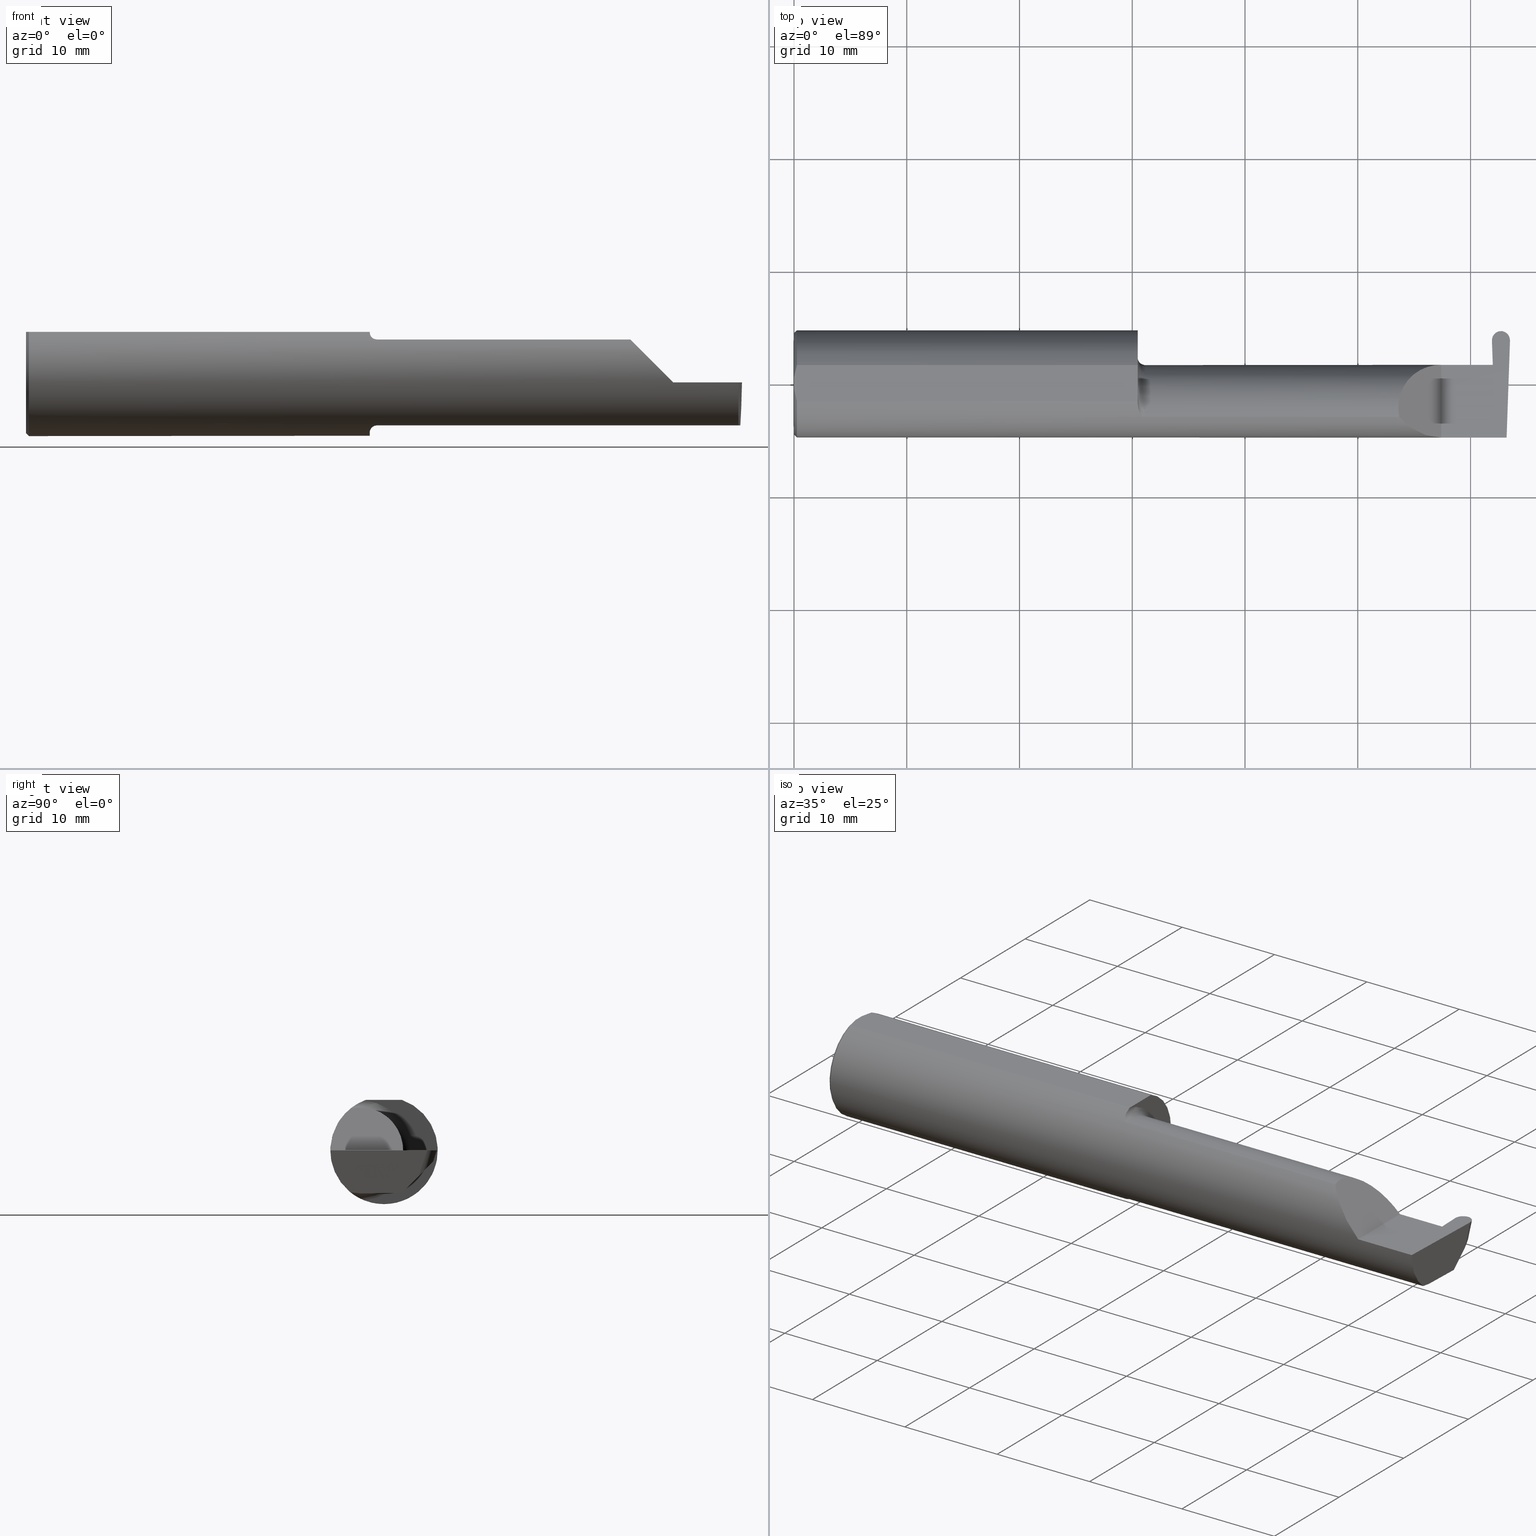
[diagram: canonical four-view strip — front | top / right | iso, engineering-drawing reading convention]
A machine part, canonical four-view strip (front | top / right | iso — engineering-drawing reading convention). The complete STEP part file that produces these views, byte-faithful:
ISO-10303-21;
HEADER;
FILE_DESCRIPTION (( 'STEP AP203' ),
    '1' );
FILE_NAME ('222149-GFR062-20.STEP',
    '2024-06-26T19:08:56',
    ( '' ),
    ( '' ),
    'SwSTEP 2.0',
    'SolidWorks 2024',
    '' );
FILE_SCHEMA (( 'CONFIG_CONTROL_DESIGN' ));
ENDSEC;

DATA;
#1 = ORIENTED_EDGE ( 'NONE', *, *, #168, .F. ) ;
#2 = ORIENTED_EDGE ( 'NONE', *, *, #165, .F. ) ;
#3 = DIRECTION ( 'NONE',  ( -1.000000000000000000, -0.000000000000000000, -0.000000000000000000 ) ) ;
#4 = AXIS2_PLACEMENT_3D ( 'NONE', #103, #274, #334 ) ;
#5 = VECTOR ( 'NONE', #602, 39.37007874015747433 ) ;
#6 = ADVANCED_FACE ( 'NONE', ( #112 ), #110, .T. ) ;
#7 = DIRECTION ( 'NONE',  ( -1.224646799147353947E-16, 0.000000000000000000, -1.000000000000000000 ) ) ;
#8 = CARTESIAN_POINT ( 'NONE',  ( 2.436235694025149279, 0.1704329581048291409, 7.809760431069554296E-18 ) ) ;
#9 = CARTESIAN_POINT ( 'NONE',  ( 0.000000000000000000, 0.000000000000000000, 0.000000000000000000 ) ) ;
#10 = DIRECTION ( 'NONE',  ( 0.000000000000000000, -0.7071067811865434649, -0.7071067811865515695 ) ) ;
#11 = CARTESIAN_POINT ( 'NONE',  ( -0.001039370078739994957, 0.06030305154315079158, -0.1500000000000000500 ) ) ;
#12 = VECTOR ( 'NONE', #221, 39.37007874015748143 ) ;
#13 = VECTOR ( 'NONE', #272, 39.37007874015748143 ) ;
#14 = CARTESIAN_POINT ( 'NONE',  ( 2.439475726232482877, 0.1218770478189729889, -0.08842600372417713794 ) ) ;
#15 = CARTESIAN_POINT ( 'NONE',  ( 1.222161949849308371, -0.1172600179964063821, 0.1461167706989258686 ) ) ;
#16 = ADVANCED_FACE ( 'NONE', ( #546 ), #108, .F. ) ;
#17 = EDGE_LOOP ( 'NONE', ( #694, #57, #437 ) ) ;
#18 = FACE_OUTER_BOUND ( 'NONE', #148, .T. ) ;
#19 = ORIENTED_EDGE ( 'NONE', *, *, #154, .F. ) ;
#20 = FACE_OUTER_BOUND ( 'NONE', #484, .T. ) ;
#21 = VECTOR ( 'NONE', #586, 39.37007874015748143 ) ;
#22 = AXIS2_PLACEMENT_3D ( 'NONE', #60, #55, #492 ) ;
#23 = CARTESIAN_POINT ( 'NONE',  ( -0.001039370078739994957, 0.1846500000000000363, 0.000000000000000000 ) ) ;
#24 = EDGE_CURVE ( 'NONE', #432, #397, #139, .T. ) ;
#25 = CARTESIAN_POINT ( 'NONE',  ( 1.200353553376445115, -0.07868116735658681193, 0.1701139256562800572 ) ) ;
#26 = VERTEX_POINT ( 'NONE', #267 ) ;
#27 = CARTESIAN_POINT ( 'NONE',  ( 2.442590694315768474, 0.002105059811798063937, -0.1499999999999999667 ) ) ;
#28 = DIRECTION ( 'NONE',  ( -0.02739170151059995562, 0.3089010440752013587, 0.9506996579664918068 ) ) ;
#29 = PERSON_AND_ORGANIZATION ( #97, #609 ) ;
#30 = ORIENTED_EDGE ( 'NONE', *, *, #579, .T. ) ;
#31 = CARTESIAN_POINT ( 'NONE',  ( 1.219511795768554840, -0.1163687266324236191, -0.1468371510166787963 ) ) ;
#32 = DIRECTION ( 'NONE',  ( -1.000000000000000000, -6.902170632284375996E-17, -0.000000000000000000 ) ) ;
#33 = ORIENTED_EDGE ( 'NONE', *, *, #117, .T. ) ;
#34 = EDGE_CURVE ( 'NONE', #420, #628, #554, .T. ) ;
#35 = LINE ( 'NONE', #126, #350 ) ;
#36 = VECTOR ( 'NONE', #186, 39.37007874015747433 ) ;
#37 = PLANE ( 'NONE',  #84 ) ;
#38 = CONICAL_SURFACE ( 'NONE', #327, 0.1773499999999999521, 0.7853981633974431720 ) ;
#39 = ORIENTED_EDGE ( 'NONE', *, *, #34, .F. ) ;
#40 = DIRECTION ( 'NONE',  ( 0.000000000000000000, 0.000000000000000000, -1.000000000000000000 ) ) ;
#41 = EDGE_CURVE ( 'NONE', #201, #161, #643, .T. ) ;
#42 = EDGE_LOOP ( 'NONE', ( #50, #292, #561, #523 ) ) ;
#43 = DIRECTION ( 'NONE',  ( -0.01806954526206907760, 0.01744955702544846027, 0.9996844524616944616 ) ) ;
#44 = PERSON_AND_ORGANIZATION ( #97, #609 ) ;
#45 = ORIENTED_EDGE ( 'NONE', *, *, #708, .T. ) ;
#46 = DIRECTION ( 'NONE',  ( -6.902170632284375996E-17, 1.000000000000000000, 0.000000000000000000 ) ) ;
#47 = VERTEX_POINT ( 'NONE', #277 ) ;
#48 = EDGE_CURVE ( 'NONE', #344, #690, #270, .T. ) ;
#49 = CARTESIAN_POINT ( 'NONE',  ( 2.488744025780162961, -0.09477667630339420279, -0.1499999999999999667 ) ) ;
#50 = ORIENTED_EDGE ( 'NONE', *, *, #606, .T. ) ;
#51 = ORIENTED_EDGE ( 'NONE', *, *, #658, .T. ) ;
#52 = DIRECTION ( 'NONE',  ( 0.000000000000000000, -1.000000000000000000, 0.000000000000000000 ) ) ;
#53 = EDGE_CURVE ( 'NONE', #297, #528, #349, .T. ) ;
#54 = CARTESIAN_POINT ( 'NONE',  ( 2.155331797197863608, 0.06664999999999991764, 0.1046682028021361927 ) ) ;
#55 = DIRECTION ( 'NONE',  ( 1.000000000000000000, 6.902170632284375996E-17, 0.000000000000000000 ) ) ;
#56 = SECURITY_CLASSIFICATION ( '', '', #364 ) ;
#57 = ORIENTED_EDGE ( 'NONE', *, *, #217, .T. ) ;
#58 = CARTESIAN_POINT ( 'NONE',  ( 2.468430450000000054, 0.1813675557112593428, -0.01010232474915217019 ) ) ;
#59 = ORIENTED_EDGE ( 'NONE', *, *, #671, .F. ) ;
#60 = CARTESIAN_POINT ( 'NONE',  ( 1.199999999999999956, 0.000000000000000000, 0.000000000000000000 ) ) ;
#61 = VERTEX_POINT ( 'NONE', #660 ) ;
#62 = CARTESIAN_POINT ( 'NONE',  ( 1.225000000000000089, -0.1172600179964007477, 0.1461167706989301984 ) ) ;
#63 = CIRCLE ( 'NONE', #600, 0.1773499999999999521 ) ;
#64 = CARTESIAN_POINT ( 'NONE',  ( 0.01000000000000013205, 0.000000000000000000, 0.000000000000000000 ) ) ;
#65 = CARTESIAN_POINT ( 'NONE',  ( 2.442572338171930646, 0.06030305154315081240, -0.1500000000000000500 ) ) ;
#66 = DIRECTION ( 'NONE',  ( 1.000000000000000000, 0.000000000000000000, 0.000000000000000000 ) ) ;
#67 = LINE ( 'NONE', #278, #237 ) ;
#68 = DIRECTION ( 'NONE',  ( 6.902170632284375996E-17, -1.000000000000000000, 0.000000000000000000 ) ) ;
#69 = EDGE_LOOP ( 'NONE', ( #150, #433, #33, #222, #281, #426 ) ) ;
#70 = CARTESIAN_POINT ( 'NONE',  ( 2.876828993045917215, 0.1873499999999998500, 0.1763499999999999235 ) ) ;
#71 = CIRCLE ( 'NONE', #704, 0.1873499999999999888 ) ;
#72 = DIRECTION ( 'NONE',  ( 0.9992386149554828290, 0.03489418134010615485, 0.01745240643728358798 ) ) ;
#73 = VERTEX_POINT ( 'NONE', #592 ) ;
#74 = LINE ( 'NONE', #399, #316 ) ;
#75 = DIRECTION ( 'NONE',  ( -0.03701744261649762141, 0.7066221440565398915, 0.7066221440565479961 ) ) ;
#76 = DATE_TIME_ROLE ( 'creation_date' ) ;
#77 = ORIENTED_EDGE ( 'NONE', *, *, #598, .F. ) ;
#78 = ADVANCED_FACE ( 'NONE', ( #101 ), #329, .F. ) ;
#79 = DIRECTION ( 'NONE',  ( 1.000000000000000000, 0.000000000000000000, -0.000000000000000000 ) ) ;
#80 = DIRECTION ( 'NONE',  ( -0.03489949670249345437, 0.9993908270190959842, 0.000000000000000000 ) ) ;
#81 = VERTEX_POINT ( 'NONE', #263 ) ;
#82 = FACE_OUTER_BOUND ( 'NONE', #69, .T. ) ;
#83 = ADVANCED_FACE ( 'NONE', ( #213 ), #487, .F. ) ;
#84 = AXIS2_PLACEMENT_3D ( 'NONE', #131, #181, #617 ) ;
#85 = CARTESIAN_POINT ( 'NONE',  ( 0.000000000000000000, 0.01880691362238934988, 0.1763499999999999235 ) ) ;
#86 = ORIENTED_EDGE ( 'NONE', *, *, #476, .F. ) ;
#87 = CARTESIAN_POINT ( 'NONE',  ( 2.488026713523222799, -0.1172600179964006922, -0.1461167706989302817 ) ) ;
#88 = CARTESIAN_POINT ( 'NONE',  ( 2.468721519699850209, 0.1846500000000000363, 0.000000000000000000 ) ) ;
#89 = PERSON_AND_ORGANIZATION ( #97, #609 ) ;
#90 = VERTEX_POINT ( 'NONE', #173 ) ;
#91 = CARTESIAN_POINT ( 'NONE',  ( 2.430739223982273156, 0.06664999999999991764, 0.000000000000000000 ) ) ;
#92 = ORIENTED_EDGE ( 'NONE', *, *, #48, .T. ) ;
#93 = ADVANCED_FACE ( 'NONE', ( #517 ), #128, .F. ) ;
#94 = LINE ( 'NONE', #306, #106 ) ;
#95 = ORIENTED_EDGE ( 'NONE', *, *, #41, .F. ) ;
#96 = CIRCLE ( 'NONE', #564, 0.1773499999999999521 ) ;
#97 = PERSON ( 'UNSPECIFIED', 'UNSPECIFIED', 'UNSPECIFIED', ('UNSPECIFIED'), ('UNSPECIFIED'), ('UNSPECIFIED') ) ;
#98 = ORIENTED_EDGE ( 'NONE', *, *, #634, .T. ) ;
#99 = LINE ( 'NONE', #384, #151 ) ;
#100 = EDGE_CURVE ( 'NONE', #124, #320, #559, .T. ) ;
#101 = FACE_OUTER_BOUND ( 'NONE', #416, .T. ) ;
#102 = DIRECTION ( 'NONE',  ( 0.000000000000000000, 0.000000000000000000, -1.000000000000000000 ) ) ;
#103 = CARTESIAN_POINT ( 'NONE',  ( 2.260000000000000231, -0.2500000000000000555, 2.939152317953647352E-17 ) ) ;
#104 = CARTESIAN_POINT ( 'NONE',  ( 2.468392368909974710, 0.1518387226096841736, 0.0009534130333776854498 ) ) ;
#105 = ORIENTED_EDGE ( 'NONE', *, *, #154, .T. ) ;
#106 = VECTOR ( 'NONE', #707, 39.37007874015748143 ) ;
#107 = VECTOR ( 'NONE', #156, 39.37007874015747433 ) ;
#108 = PLANE ( 'NONE',  #4 ) ;
#109 = DIRECTION ( 'NONE',  ( -1.000000000000000000, -0.000000000000000000, -0.000000000000000000 ) ) ;
#110 = CYLINDRICAL_SURFACE ( 'NONE', #372, 0.03150000000000000716 ) ;
#111 = PLANE ( 'NONE',  #653 ) ;
#112 = FACE_OUTER_BOUND ( 'NONE', #146, .T. ) ;
#113 = APPLICATION_PROTOCOL_DEFINITION ( 'international standard', 'config_control_design', 1994, #696 ) ;
#114 = AXIS2_PLACEMENT_3D ( 'NONE', #179, #515, #461 ) ;
#115 = CARTESIAN_POINT ( 'NONE',  ( 2.499932917084233264, 0.1506083980881225415, 0.000000000000000000 ) ) ;
#116 = CARTESIAN_POINT ( 'NONE',  ( 2.436927982915767288, 0.1506083980881225137, 0.000000000000000000 ) ) ;
#117 = EDGE_CURVE ( 'NONE', #90, #184, #67, .T. ) ;
#118 = CARTESIAN_POINT ( 'NONE',  ( 1.202960551809340251, -0.09317341542745753713, -0.1626248379125196653 ) ) ;
#119 = PLANE ( 'NONE',  #621 ) ;
#120 = DIRECTION ( 'NONE',  ( 1.000000000000000000, 0.000000000000000000, 0.000000000000000000 ) ) ;
#121 = ORIENTED_EDGE ( 'NONE', *, *, #612, .F. ) ;
#122 = DIRECTION ( 'NONE',  ( 0.000000000000000000, 0.000000000000000000, 1.000000000000000000 ) ) ;
#123 = DIRECTION ( 'NONE',  ( -0.03489949670249308661, -0.9993908270190960952, 0.000000000000000000 ) ) ;
#124 = VERTEX_POINT ( 'NONE', #573 ) ;
#125 = AXIS2_PLACEMENT_3D ( 'NONE', #321, #541, #10 ) ;
#126 = CARTESIAN_POINT ( 'NONE',  ( -0.001039370078739994957, 0.1846500000000000363, 0.000000000000000000 ) ) ;
#127 = AXIS2_PLACEMENT_3D ( 'NONE', #485, #641, #596 ) ;
#128 = PLANE ( 'NONE',  #543 ) ;
#129 = VERTEX_POINT ( 'NONE', #177 ) ;
#130 = CARTESIAN_POINT ( 'NONE',  ( 1.199999999999999956, -0.06851976604679066440, -0.1743704796142198643 ) ) ;
#131 = CARTESIAN_POINT ( 'NONE',  ( 0.000000000000000000, 0.000000000000000000, 0.000000000000000000 ) ) ;
#132 = CALENDAR_DATE ( 2024, 26, 6 ) ;
#133 = ORIENTED_EDGE ( 'NONE', *, *, #683, .F. ) ;
#134 = ADVANCED_FACE ( 'NONE', ( #626 ), #119, .F. ) ;
#135 = PLANE ( 'NONE',  #215 ) ;
#136 = ORIENTED_EDGE ( 'NONE', *, *, #398, .F. ) ;
#137 = CARTESIAN_POINT ( 'NONE',  ( 2.488026713523222799, -0.1172600179964006922, -0.1461167706989302817 ) ) ;
#138 = APPROVAL ( #419, 'UNSPECIFIED' ) ;
#139 = CIRCLE ( 'NONE', #524, 0.1749999999999999889 ) ;
#140 = CARTESIAN_POINT ( 'NONE',  ( 1.199999999999999956, 0.1873499999999998222, 0.000000000000000000 ) ) ;
#141 = AXIS2_PLACEMENT_3D ( 'NONE', #205, #328, #52 ) ;
#142 = ORIENTED_EDGE ( 'NONE', *, *, #489, .T. ) ;
#143 = LINE ( 'NONE', #542, #107 ) ;
#144 = LINE ( 'NONE', #581, #21 ) ;
#145 = DATE_TIME_ROLE ( 'classification_date' ) ;
#146 = EDGE_LOOP ( 'NONE', ( #155, #638, #121, #39, #257 ) ) ;
#147 = LINE ( 'NONE', #481, #324 ) ;
#148 = EDGE_LOOP ( 'NONE', ( #538, #686, #570, #30, #51 ) ) ;
#149 = VECTOR ( 'NONE', #75, 39.37007874015748143 ) ;
#150 = ORIENTED_EDGE ( 'NONE', *, *, #571, .T. ) ;
#151 = VECTOR ( 'NONE', #635, 39.37007874015748143 ) ;
#152 = ORIENTED_EDGE ( 'NONE', *, *, #429, .F. ) ;
#153 = CARTESIAN_POINT ( 'NONE',  ( 2.468430450000000054, 0.1783435689548762415, -0.01940919900590836258 ) ) ;
#154 = EDGE_CURVE ( 'NONE', #459, #26, #522, .T. ) ;
#155 = ORIENTED_EDGE ( 'NONE', *, *, #550, .F. ) ;
#156 = DIRECTION ( 'NONE',  ( -0.01806954526206907760, 0.01744955702544846027, 0.9996844524616944616 ) ) ;
#157 = PRODUCT_DEFINITION_SHAPE ( 'NONE', 'NONE',  #377 ) ;
#158 = CARTESIAN_POINT ( 'NONE',  ( 2.466868444985754305, 0.1637525499561582054, -0.06431573796887413152 ) ) ;
#159 = LINE ( 'NONE', #376, #477 ) ;
#160 = AXIS2_PLACEMENT_3D ( 'NONE', #436, #604, #68 ) ;
#161 = VERTEX_POINT ( 'NONE', #501 ) ;
#162 = COORDINATED_UNIVERSAL_TIME_OFFSET ( 8, 0, .BEHIND. ) ;
#163 = CARTESIAN_POINT ( 'NONE',  ( 2.436927982915767288, 0.1506083980881225137, 0.000000000000000000 ) ) ;
#164 = CARTESIAN_POINT ( 'NONE',  ( 2.260000000000000231, 0.06664999999999993152, 1.592040838891559588E-16 ) ) ;
#165 = EDGE_CURVE ( 'NONE', #532, #201, #568, .T. ) ;
#166 = CARTESIAN_POINT ( 'NONE',  ( 2.439859874782298377, 0.06664999999999998703, 0.000000000000000000 ) ) ;
#167 = ORIENTED_EDGE ( 'NONE', *, *, #326, .T. ) ;
#168 = EDGE_CURVE ( 'NONE', #61, #129, #342, .T. ) ;
#169 = AXIS2_PLACEMENT_3D ( 'NONE', #669, #607, #120 ) ;
#170 = CARTESIAN_POINT ( 'NONE',  ( 0.000000000000000000, 0.000000000000000000, 0.000000000000000000 ) ) ;
#171 = ORIENTED_EDGE ( 'NONE', *, *, #245, .F. ) ;
#172 = DIRECTION ( 'NONE',  ( 1.000000000000000000, 6.902170632284375996E-17, 0.000000000000000000 ) ) ;
#173 = CARTESIAN_POINT ( 'NONE',  ( 1.199999999999999956, 0.06325108694718235836, 0.1763499999999999235 ) ) ;
#174 =( NAMED_UNIT ( * ) PLANE_ANGLE_UNIT ( ) SI_UNIT ( $, .RADIAN. ) );
#175 = VERTEX_POINT ( 'NONE', #506 ) ;
#176 = CARTESIAN_POINT ( 'NONE',  ( 2.439954497345508511, 0.06655862405284596051, -0.005234924505382013322 ) ) ;
#177 = CARTESIAN_POINT ( 'NONE',  ( 2.488131149766799943, -0.1873499999999999888, 0.000000000000000000 ) ) ;
#178 = ORIENTED_EDGE ( 'NONE', *, *, #338, .T. ) ;
#179 = CARTESIAN_POINT ( 'NONE',  ( 2.499980768683121024, 0.1519786885938757826, 0.000000000000000000 ) ) ;
#180 = APPROVAL_PERSON_ORGANIZATION ( #44, #138, #235 ) ;
#181 = DIRECTION ( 'NONE',  ( 1.000000000000000000, 0.000000000000000000, 0.000000000000000000 ) ) ;
#182 = PERSON_AND_ORGANIZATION_ROLE ( 'creator' ) ;
#183 = ADVANCED_FACE ( 'NONE', ( #679 ), #37, .F. ) ;
#184 = VERTEX_POINT ( 'NONE', #556 ) ;
#185 = CARTESIAN_POINT ( 'NONE',  ( 0.000000000000000000, 0.000000000000000000, 0.000000000000000000 ) ) ;
#186 = DIRECTION ( 'NONE',  ( 0.02739170151059995562, -0.3089010440752013031, -0.9506996579664920288 ) ) ;
#187 = EDGE_LOOP ( 'NONE', ( #203, #370, #615, #676, #595, #645, #77, #86, #430, #259 ) ) ;
#188 = CARTESIAN_POINT ( 'NONE',  ( 0.01000000000000013205, 0.000000000000000000, 0.000000000000000000 ) ) ;
#189 = CARTESIAN_POINT ( 'NONE',  ( 2.498892892970808521, 0.1506577441815562524, -0.05964530736159356916 ) ) ;
#190 = DATE_AND_TIME ( #275, #395 ) ;
#191 = ORIENTED_EDGE ( 'NONE', *, *, #480, .T. ) ;
#192 = EDGE_CURVE ( 'NONE', #597, #297, #688, .T. ) ;
#193 = CARTESIAN_POINT ( 'NONE',  ( 2.468430450000000054, 0.1722870660481372052, -0.03801598549501235269 ) ) ;
#194 = VECTOR ( 'NONE', #584, 39.37007874015748143 ) ;
#195 = CARTESIAN_POINT ( 'NONE',  ( 2.488370294460939380, -0.1061291577212409576, -0.1486999626928445506 ) ) ;
#196 = ORIENTED_EDGE ( 'NONE', *, *, #429, .T. ) ;
#197 = CARTESIAN_POINT ( 'NONE',  ( 2.430647848035137226, 0.06655862405286423755, -0.005234924505377647891 ) ) ;
#198 = ORIENTED_EDGE ( 'NONE', *, *, #362, .F. ) ;
#199 = EDGE_CURVE ( 'NONE', #583, #26, #552, .T. ) ;
#200 = CARTESIAN_POINT ( 'NONE',  ( 2.488026713523222799, -0.1172600179964006922, -0.1461167706989302817 ) ) ;
#201 = VERTEX_POINT ( 'NONE', #346 ) ;
#202 = DESIGN_CONTEXT ( 'detailed design', #483, 'design' ) ;
#203 = ORIENTED_EDGE ( 'NONE', *, *, #245, .T. ) ;
#204 = CIRCLE ( 'NONE', #252, 0.1499999999999999112 ) ;
#205 = CARTESIAN_POINT ( 'NONE',  ( 1.199999999999999956, -0.08335000000000007681, 0.000000000000000000 ) ) ;
#206 = ADVANCED_FACE ( 'NONE', ( #18 ), #230, .F. ) ;
#207 = DIRECTION ( 'NONE',  ( -0.02739170151059983765, -0.3089010440752013031, -0.9506996579664919178 ) ) ;
#208 = FACE_OUTER_BOUND ( 'NONE', #236, .T. ) ;
#209 = CC_DESIGN_PERSON_AND_ORGANIZATION_ASSIGNMENT ( #219, #291, ( #490 ) ) ;
#210 = ORIENTED_EDGE ( 'NONE', *, *, #476, .T. ) ;
#211 = CARTESIAN_POINT ( 'NONE',  ( 1.199999999999999956, -0.06325108694718287183, 0.1763499999999999235 ) ) ;
#212 =( BOUNDED_CURVE ( )  B_SPLINE_CURVE ( 3, ( #536, #256, #189, #631 ),
 .UNSPECIFIED., .F., .F. ) 
 B_SPLINE_CURVE_WITH_KNOTS ( ( 4, 4 ),
 ( 3.153164711223715777, 4.726229945297543367 ),
 .UNSPECIFIED. ) 
 CURVE ( )  GEOMETRIC_REPRESENTATION_ITEM ( )  RATIONAL_B_SPLINE_CURVE ( ( 1.000000000000000000, 0.8042027643195482911, 0.8042027643195482911, 1.000000000000000000 ) ) 
 REPRESENTATION_ITEM ( '' )  );
#213 = FACE_OUTER_BOUND ( 'NONE', #242, .T. ) ;
#214 = CARTESIAN_POINT ( 'NONE',  ( 2.488131149766799943, -0.1873499999999999888, 0.000000000000000000 ) ) ;
#215 = AXIS2_PLACEMENT_3D ( 'NONE', #70, #575, #79 ) ;
#216 = ORIENTED_EDGE ( 'NONE', *, *, #269, .F. ) ;
#217 = EDGE_CURVE ( 'NONE', #628, #344, #290, .T. ) ;
#218 = ORIENTED_EDGE ( 'NONE', *, *, #571, .F. ) ;
#219 = PERSON_AND_ORGANIZATION ( #97, #609 ) ;
#220 = VERTEX_POINT ( 'NONE', #622 ) ;
#221 = DIRECTION ( 'NONE',  ( 0.7071067811865511255, 0.000000000000000000, -0.7071067811865439090 ) ) ;
#222 = ORIENTED_EDGE ( 'NONE', *, *, #347, .F. ) ;
#223 = VECTOR ( 'NONE', #123, 39.37007874015747433 ) ;
#224 = LOCAL_TIME ( 12, 8, 56.00000000000000000, #632 ) ;
#225 = CARTESIAN_POINT ( 'NONE',  ( 0.005151108632379722968, -0.04888864921576022843, 0.1763499999999999235 ) ) ;
#226 = CARTESIAN_POINT ( 'NONE',  ( 2.433493489500018203, 0.2360713477856620224, 0.02576829624251320353 ) ) ;
#227 = DIRECTION ( 'NONE',  ( 0.000000000000000000, 0.000000000000000000, -1.000000000000000000 ) ) ;
#228 = ORIENTED_EDGE ( 'NONE', *, *, #480, .F. ) ;
#229 = CARTESIAN_POINT ( 'NONE',  ( 1.213203859946833996, -0.1120371980050639676, -0.1501764597936558199 ) ) ;
#230 = PLANE ( 'NONE',  #672 ) ;
#231 = ORIENTED_EDGE ( 'NONE', *, *, #117, .F. ) ;
#232 = CARTESIAN_POINT ( 'NONE',  ( 1.206304331342287650, -0.1022198306720692035, -0.1570962426853817762 ) ) ;
#233 = EDGE_CURVE ( 'NONE', #47, #201, #427, .T. ) ;
#234 = DIRECTION ( 'NONE',  ( 0.000000000000000000, 0.000000000000000000, 1.000000000000000000 ) ) ;
#235 = APPROVAL_ROLE ( '' ) ;
#236 = EDGE_LOOP ( 'NONE', ( #650, #413, #178, #566 ) ) ;
#237 = VECTOR ( 'NONE', #283, 39.37007874015748143 ) ;
#238 = FACE_OUTER_BOUND ( 'NONE', #509, .T. ) ;
#239 = CARTESIAN_POINT ( 'NONE',  ( 2.202189699843948745, -0.1873500000000000443, 0.05781030015605096578 ) ) ;
#240 = CC_DESIGN_DATE_AND_TIME_ASSIGNMENT ( #689, #76, ( #377 ) ) ;
#241 = CALENDAR_DATE ( 2024, 26, 6 ) ;
#242 = EDGE_LOOP ( 'NONE', ( #247, #92, #216, #59, #254, #152, #251, #1, #601 ) ) ;
#243 =( BOUNDED_CURVE ( )  B_SPLINE_CURVE ( 3, ( #511, #27, #417, #469 ),
 .UNSPECIFIED., .F., .T. ) 
 B_SPLINE_CURVE_WITH_KNOTS ( ( 4, 4 ),
 ( 3.159045946109732661, 4.694935687864692397 ),
 .UNSPECIFIED. ) 
 CURVE ( )  GEOMETRIC_REPRESENTATION_ITEM ( )  RATIONAL_B_SPLINE_CURVE ( ( 1.000000000000000000, 0.8128932002257790446, 0.8128932002257790446, 1.000000000000000000 ) ) 
 REPRESENTATION_ITEM ( '' )  );
#244 = CARTESIAN_POINT ( 'NONE',  ( 1.222174967710399462, -0.1172600179964008033, -0.1461167706989301707 ) ) ;
#245 = EDGE_CURVE ( 'NONE', #587, #394, #693, .T. ) ;
#246 = DIRECTION ( 'NONE',  ( 1.000000000000000000, 6.902170632284375996E-17, 0.000000000000000000 ) ) ;
#247 = ORIENTED_EDGE ( 'NONE', *, *, #390, .F. ) ;
#248 = DIRECTION ( 'NONE',  ( 1.000000000000000000, 0.000000000000000000, 0.000000000000000000 ) ) ;
#249 = CARTESIAN_POINT ( 'NONE',  ( 1.199999999999999956, 0.1873499999999997390, 0.1763499999999999235 ) ) ;
#250 = APPROVAL_ROLE ( '' ) ;
#251 = ORIENTED_EDGE ( 'NONE', *, *, #489, .F. ) ;
#252 = AXIS2_PLACEMENT_3D ( 'NONE', #614, #343, #445 ) ;
#253 = DIRECTION ( 'NONE',  ( 1.000000000000000000, 0.000000000000000000, 0.000000000000000000 ) ) ;
#254 = ORIENTED_EDGE ( 'NONE', *, *, #380, .F. ) ;
#255 = B_SPLINE_CURVE_WITH_KNOTS ( 'NONE', 3,
 ( #85, #363, #474, #310 ),
 .UNSPECIFIED., .F., .F.,
 ( 4, 4 ),
 ( 0.01188664626022242071, 0.01304646959483746725 ),
 .UNSPECIFIED. ) ;
#256 = CARTESIAN_POINT ( 'NONE',  ( 2.486891473655445939, 0.1715521506114310035, -0.03875090093171857514 ) ) ;
#257 = ORIENTED_EDGE ( 'NONE', *, *, #258, .F. ) ;
#258 = EDGE_CURVE ( 'NONE', #61, #420, #495, .T. ) ;
#259 = ORIENTED_EDGE ( 'NONE', *, *, #323, .F. ) ;
#260 = CARTESIAN_POINT ( 'NONE',  ( 2.499944547461123268, 0.1507395558974708449, 0.0004036622306032633173 ) ) ;
#261 = CLOSED_SHELL ( 'NONE', ( #500, #665, #410, #16, #83, #460, #183, #357, #659, #521, #266, #93, #134, #78, #206, #383, #555, #6, #540 ) ) ;
#262 = APPROVAL ( #442, 'UNSPECIFIED' ) ;
#263 = CARTESIAN_POINT ( 'NONE',  ( 2.430647848035137226, 0.06655862405286423755, -0.005234924505377647891 ) ) ;
#264 = VECTOR ( 'NONE', #572, 39.37007874015748143 ) ;
#265 = CARTESIAN_POINT ( 'NONE',  ( 2.487084196965268390, -0.1623470442677541203, -0.1099340280425337990 ) ) ;
#266 = ADVANCED_FACE ( 'NONE', ( #610 ), #478, .T. ) ;
#267 = CARTESIAN_POINT ( 'NONE',  ( 0.01000000000000013205, 0.000000000000000000, -0.1873499999999999888 ) ) ;
#268 = CARTESIAN_POINT ( 'NONE',  ( 1.225000000000000089, -0.1172600179964007477, 0.1461167706989301984 ) ) ;
#269 = EDGE_CURVE ( 'NONE', #175, #690, #147, .T. ) ;
#270 =( BOUNDED_CURVE ( )  B_SPLINE_CURVE ( 3, ( #499, #497, #8, #163 ),
 .UNSPECIFIED., .F., .T. ) 
 B_SPLINE_CURVE_WITH_KNOTS ( ( 4, 4 ),
 ( 3.057488531086369754, 4.656081685705084183 ),
 .UNSPECIFIED. ) 
 CURVE ( )  GEOMETRIC_REPRESENTATION_ITEM ( )  RATIONAL_B_SPLINE_CURVE ( ( 1.000000000000000000, 0.7981407609938104830, 0.7981407609938104830, 1.000000000000000000 ) ) 
 REPRESENTATION_ITEM ( '' )  );
#271 = ORIENTED_EDGE ( 'NONE', *, *, #233, .F. ) ;
#272 = DIRECTION ( 'NONE',  ( 1.000000000000000000, -0.000000000000000000, -0.000000000000000000 ) ) ;
#273 = MANIFOLD_SOLID_BREP ( 'Radii', #261 ) ;
#274 = DIRECTION ( 'NONE',  ( -0.7071067811865441310, 0.000000000000000000, -0.7071067811865510144 ) ) ;
#275 = CALENDAR_DATE ( 2024, 26, 6 ) ;
#276 = LOCAL_TIME ( 12, 8, 56.00000000000000000, #531 ) ;
#277 = CARTESIAN_POINT ( 'NONE',  ( 2.260000000000000231, -0.1873499999999999888, 2.939152317953647352E-17 ) ) ;
#278 = CARTESIAN_POINT ( 'NONE',  ( 0.000000000000000000, 0.06325108694718235836, 0.1763499999999999235 ) ) ;
#279 = EDGE_CURVE ( 'NONE', #690, #297, #415, .T. ) ;
#280 = CARTESIAN_POINT ( 'NONE',  ( 1.208475602106621416, -0.1064978748893407601, 0.1542035505680382779 ) ) ;
#281 = ORIENTED_EDGE ( 'NONE', *, *, #100, .F. ) ;
#282 = CARTESIAN_POINT ( 'NONE',  ( 0.000000000000000000, 0.000000000000000000, -0.1773499999999999521 ) ) ;
#283 = DIRECTION ( 'NONE',  ( -1.000000000000000000, -0.000000000000000000, -0.000000000000000000 ) ) ;
#284 = CC_DESIGN_DATE_AND_TIME_ASSIGNMENT ( #644, #145, ( #56 ) ) ;
#285 = DIRECTION ( 'NONE',  ( 1.000000000000000000, 7.488084056613327882E-15, -0.000000000000000000 ) ) ;
#286 = ORIENTED_EDGE ( 'NONE', *, *, #301, .F. ) ;
#287 = CC_DESIGN_SECURITY_CLASSIFICATION ( #56, ( #544 ) ) ;
#288 = VECTOR ( 'NONE', #43, 39.37007874015747433 ) ;
#289 = FACE_OUTER_BOUND ( 'NONE', #681, .T. ) ;
#290 = LINE ( 'NONE', #512, #652 ) ;
#291 = PERSON_AND_ORGANIZATION_ROLE ( 'design_owner' ) ;
#292 = ORIENTED_EDGE ( 'NONE', *, *, #301, .T. ) ;
#293 = EDGE_CURVE ( 'NONE', #73, #315, #144, .T. ) ;
#294 = CARTESIAN_POINT ( 'NONE',  ( 1.225000000000000089, -0.1172600179964008171, -0.1461167706989301984 ) ) ;
#295 = CARTESIAN_POINT ( 'NONE',  ( 2.113883229301068312, -0.1172600179964008726, 0.1461167706989301429 ) ) ;
#296 = CALENDAR_DATE ( 2024, 26, 6 ) ;
#297 = VERTEX_POINT ( 'NONE', #697 ) ;
#298 = CARTESIAN_POINT ( 'NONE',  ( 1.215028532764138580, -0.1137241120808236416, -0.1488947809299402958 ) ) ;
#299 = CARTESIAN_POINT ( 'NONE',  ( 2.260000000000000231, -0.1873499999999999888, 2.939152317953647352E-17 ) ) ;
#300 = ORIENTED_EDGE ( 'NONE', *, *, #579, .F. ) ;
#301 = EDGE_CURVE ( 'NONE', #534, #670, #94, .T. ) ;
#302 = VECTOR ( 'NONE', #462, 39.37007874015748143 ) ;
#303 = DIRECTION ( 'NONE',  ( 1.000000000000000000, 0.000000000000000000, 0.000000000000000000 ) ) ;
#304 = B_SPLINE_CURVE_WITH_KNOTS ( 'NONE', 3,
 ( #197, #313, #576, #91 ),
 .UNSPECIFIED., .F., .F.,
 ( 4, 4 ),
 ( 0.000000000000000000, 1.000000000000000000 ),
 .UNSPECIFIED. ) ;
#305 = CIRCLE ( 'NONE', #22, 0.1873499999999999888 ) ;
#306 = CARTESIAN_POINT ( 'NONE',  ( 2.442617676478078259, -0.08344164721461164169, -0.1500000000000000500 ) ) ;
#307 = PERSON_AND_ORGANIZATION ( #97, #609 ) ;
#308 = ORIENTED_EDGE ( 'NONE', *, *, #192, .T. ) ;
#309 = LINE ( 'NONE', #11, #13 ) ;
#310 = CARTESIAN_POINT ( 'NONE',  ( 0.01000000000000013205, 0.06325108694718235836, 0.1763499999999999235 ) ) ;
#311 = APPROVAL_DATE_TIME ( #627, #138 ) ;
#312 = ORIENTED_EDGE ( 'NONE', *, *, #516, .F. ) ;
#313 = CARTESIAN_POINT ( 'NONE',  ( 2.430678306684182832, 0.06658908270190946888, -0.003489949670251768152 ) ) ;
#314 = PERSON_AND_ORGANIZATION_ROLE ( 'creator' ) ;
#315 = VERTEX_POINT ( 'NONE', #642 ) ;
#316 = VECTOR ( 'NONE', #172, 39.37007874015748143 ) ;
#317 = CARTESIAN_POINT ( 'NONE',  ( 2.489143054109411057, -0.08334999999999997966, -0.1500000000000000500 ) ) ;
#318 = ORIENTED_EDGE ( 'NONE', *, *, #233, .T. ) ;
#319 = EDGE_CURVE ( 'NONE', #315, #514, #428, .T. ) ;
#320 = VERTEX_POINT ( 'NONE', #424 ) ;
#321 = CARTESIAN_POINT ( 'NONE',  ( -0.001039370078739994957, 0.1723030515431495657, -0.03799999999999999906 ) ) ;
#322 = PLANE ( 'NONE',  #127 ) ;
#323 = EDGE_CURVE ( 'NONE', #587, #514, #393, .T. ) ;
#324 = VECTOR ( 'NONE', #369, 39.37007874015748143 ) ;
#325 = CARTESIAN_POINT ( 'NONE',  ( 2.466868444985754305, 0.1337942696928608455, -0.05458170264606325428 ) ) ;
#326 = EDGE_CURVE ( 'NONE', #528, #73, #212, .T. ) ;
#327 = AXIS2_PLACEMENT_3D ( 'NONE', #359, #253, #40 ) ;
#328 = DIRECTION ( 'NONE',  ( -1.000000000000000000, -6.902170632284375996E-17, -0.000000000000000000 ) ) ;
#329 = PLANE ( 'NONE',  #125 ) ;
#330 = CARTESIAN_POINT ( 'NONE',  ( 2.468430450000000054, 0.1753165746847618611, -0.02871425790364445785 ) ) ;
#331 = DIRECTION ( 'NONE',  ( -0.02739170151059983765, -0.3089010440752013587, -0.9506996579664918068 ) ) ;
#332 = EDGE_CURVE ( 'NONE', #551, #90, #431, .T. ) ;
#333 = CARTESIAN_POINT ( 'NONE',  ( 1.206287624083520305, -0.1021858045380147212, 0.1571187174372874473 ) ) ;
#334 = DIRECTION ( 'NONE',  ( -0.7071067811865509034, 0.000000000000000000, 0.7071067811865440200 ) ) ;
#335 = VECTOR ( 'NONE', #32, 39.37007874015748143 ) ;
#336 = CARTESIAN_POINT ( 'NONE',  ( 1.201829077486400443, -0.08839624499054657414, 0.1652742498708036911 ) ) ;
#337 = AXIS2_PLACEMENT_3D ( 'NONE', #403, #66, #457 ) ;
#338 = EDGE_CURVE ( 'NONE', #81, #220, #304, .T. ) ;
#339 = CARTESIAN_POINT ( 'NONE',  ( 2.500625205974851273, 0.1704329581048291409, -1.247844596711688058E-17 ) ) ;
#340 =( LENGTH_UNIT ( ) NAMED_UNIT ( * ) SI_UNIT ( $, .METRE. ) );
#341 = CARTESIAN_POINT ( 'NONE',  ( 1.199999999999999956, -0.07368234487347199990, -0.1723418180300747837 ) ) ;
#342 = LINE ( 'NONE', #613, #223 ) ;
#343 = DIRECTION ( 'NONE',  ( -1.000000000000000000, -6.902170632284375996E-17, -0.000000000000000000 ) ) ;
#344 = VERTEX_POINT ( 'NONE', #533 ) ;
#345 = DIRECTION ( 'NONE',  ( 0.000000000000000000, 0.000000000000000000, -1.000000000000000000 ) ) ;
#346 = CARTESIAN_POINT ( 'NONE',  ( 2.113883229301068312, -0.1172600179964008726, 0.1461167706989301429 ) ) ;
#347 = EDGE_CURVE ( 'NONE', #320, #184, #255, .T. ) ;
#348 = EDGE_LOOP ( 'NONE', ( #210, #300, #360, #286 ) ) ;
#349 =( BOUNDED_CURVE ( )  B_SPLINE_CURVE ( 3, ( #14, #438, #446, #493 ),
 .UNSPECIFIED., .F., .F. ) 
 B_SPLINE_CURVE_WITH_KNOTS ( ( 4, 4 ),
 ( 1.556955361882043087, 3.130020595955853135 ),
 .UNSPECIFIED. ) 
 CURVE ( )  GEOMETRIC_REPRESENTATION_ITEM ( )  RATIONAL_B_SPLINE_CURVE ( ( 1.000000000000000000, 0.8042027643195523989, 0.8042027643195523989, 1.000000000000000000 ) ) 
 REPRESENTATION_ITEM ( '' )  );
#350 = VECTOR ( 'NONE', #567, 39.37007874015748143 ) ;
#351 = CARTESIAN_POINT ( 'NONE',  ( 2.489143054109411057, -0.08334999999999997966, -0.1500000000000000500 ) ) ;
#352 = DIRECTION ( 'NONE',  ( -0.000000000000000000, 1.000000000000000000, -0.000000000000000000 ) ) ;
#353 = ORIENTED_EDGE ( 'NONE', *, *, #444, .T. ) ;
#354 = CARTESIAN_POINT ( 'NONE',  ( 1.225000000000000089, -0.1172600179964008171, -0.1461167706989301984 ) ) ;
#355 = CARTESIAN_POINT ( 'NONE',  ( 2.436880131316879083, 0.1519786885938757270, 0.000000000000000000 ) ) ;
#356 = ORIENTED_EDGE ( 'NONE', *, *, #516, .T. ) ;
#357 = ADVANCED_FACE ( 'NONE', ( #636 ), #38, .T. ) ;
#358 = CARTESIAN_POINT ( 'NONE',  ( 0.01000000000000013205, -0.06325108694718235836, 0.1763499999999999235 ) ) ;
#359 = CARTESIAN_POINT ( 'NONE',  ( 0.000000000000000000, 0.000000000000000000, 0.000000000000000000 ) ) ;
#360 = ORIENTED_EDGE ( 'NONE', *, *, #371, .F. ) ;
#361 = CARTESIAN_POINT ( 'NONE',  ( 0.01000000000000013205, -0.06325108694718235836, 0.1763499999999999235 ) ) ;
#362 = EDGE_CURVE ( 'NONE', #397, #90, #702, .T. ) ;
#363 = CARTESIAN_POINT ( 'NONE',  ( 0.001616639753276021213, 0.03405189565400638246, 0.1763499999999999235 ) ) ;
#364 = SECURITY_CLASSIFICATION_LEVEL ( 'unclassified' ) ;
#365 = ORIENTED_EDGE ( 'NONE', *, *, #293, .T. ) ;
#366 = CARTESIAN_POINT ( 'NONE',  ( 2.489440290287315172, -0.07483826952468640437, -0.1500000000000000500 ) ) ;
#367 = COORDINATED_UNIVERSAL_TIME_OFFSET ( 8, 0, .BEHIND. ) ;
#368 = ORIENTED_EDGE ( 'NONE', *, *, #649, .F. ) ;
#369 = DIRECTION ( 'NONE',  ( -0.03489949670249346131, 0.9993908270190959842, -0.000000000000000000 ) ) ;
#370 = ORIENTED_EDGE ( 'NONE', *, *, #692, .F. ) ;
#371 = EDGE_CURVE ( 'NONE', #670, #597, #530, .T. ) ;
#372 = AXIS2_PLACEMENT_3D ( 'NONE', #325, #207, #668 ) ;
#373 = B_SPLINE_CURVE_WITH_KNOTS ( 'NONE', 3,
 ( #392, #401, #25, #336, #667, #333, #280, #454, #560, #386, #15, #62 ),
 .UNSPECIFIED., .F., .F.,
 ( 4, 2, 2, 2, 2, 4 ),
 ( 4.423516731080811751E-05, 0.0004615475116586734692, 0.0008788598560065388277, 0.001296172200354404240, 0.001504828372528336025, 0.001713484544702268027 ),
 .UNSPECIFIED. ) ;
#374 = VECTOR ( 'NONE', #682, 39.37007874015748143 ) ;
#375 = ORIENTED_EDGE ( 'NONE', *, *, #708, .F. ) ;
#376 = CARTESIAN_POINT ( 'NONE',  ( 2.733184360054361939, -0.08334999999999997966, -0.1500000000000000500 ) ) ;
#377 = PRODUCT_DEFINITION ( 'UNKNOWN', '', #544, #202 ) ;
#378 = ORIENTED_EDGE ( 'NONE', *, *, #371, .T. ) ;
#379 = FACE_OUTER_BOUND ( 'NONE', #187, .T. ) ;
#380 = EDGE_CURVE ( 'NONE', #161, #220, #74, .T. ) ;
#381 = ORIENTED_EDGE ( 'NONE', *, *, #651, .F. ) ;
#382 = LINE ( 'NONE', #260, #5 ) ;
#383 = ADVANCED_FACE ( 'NONE', ( #289 ), #678, .F. ) ;
#384 = CARTESIAN_POINT ( 'NONE',  ( 1.199999999999998845, 0.06655862405284594663, -0.005234924505898153405 ) ) ;
#385 = CARTESIAN_POINT ( 'NONE',  ( 1.199999999999999956, -0.08335000000000007681, 0.000000000000000000 ) ) ;
#386 = CARTESIAN_POINT ( 'NONE',  ( 1.219481469043492083, -0.1163560528186167731, 0.1468472430636322268 ) ) ;
#387 = CARTESIAN_POINT ( 'NONE',  ( 2.113883229301068312, -0.1172600179964008726, 0.1461167706989301429 ) ) ;
#388 =( NAMED_UNIT ( * ) SI_UNIT ( $, .STERADIAN. ) SOLID_ANGLE_UNIT ( ) );
#389 = PRODUCT_RELATED_PRODUCT_CATEGORY ( 'detail', '', ( #490 ) ) ;
#390 = EDGE_CURVE ( 'NONE', #344, #420, #35, .T. ) ;
#391 = VECTOR ( 'NONE', #331, 39.37007874015748854 ) ;
#392 = CARTESIAN_POINT ( 'NONE',  ( 1.199999999999999956, -0.06851976604679066440, 0.1743704796142198643 ) ) ;
#393 =( BOUNDED_CURVE ( )  B_SPLINE_CURVE ( 3, ( #200, #195, #49, #317 ),
 .UNSPECIFIED., .F., .T. ) 
 B_SPLINE_CURVE_WITH_KNOTS ( ( 4, 4 ),
 ( 0.8789888184544036864, 1.107026853503848773 ),
 .UNSPECIFIED. ) 
 CURVE ( )  GEOMETRIC_REPRESENTATION_ITEM ( )  RATIONAL_B_SPLINE_CURVE ( ( 1.000000000000000000, 0.9956712472009929815, 0.9956712472009929815, 1.000000000000000000 ) ) 
 REPRESENTATION_ITEM ( '' )  );
#394 = VERTEX_POINT ( 'NONE', #294 ) ;
#395 = LOCAL_TIME ( 12, 8, 56.00000000000000000, #162 ) ;
#396 = CARTESIAN_POINT ( 'NONE',  ( 0.000000000000000000, 0.1873499999999998500, 0.1763499999999999235 ) ) ;
#397 = VERTEX_POINT ( 'NONE', #616 ) ;
#398 = EDGE_CURVE ( 'NONE', #26, #184, #71, .T. ) ;
#399 = CARTESIAN_POINT ( 'NONE',  ( 1.199999999999999956, 0.06664999999999984825, 1.592040838891559588E-16 ) ) ;
#400 = DIRECTION ( 'NONE',  ( 0.000000000000000000, 0.000000000000000000, -1.000000000000000000 ) ) ;
#401 = CARTESIAN_POINT ( 'NONE',  ( 1.199999999999999956, -0.07367581953296710451, 0.1723443821957855171 ) ) ;
#402 = ORIENTED_EDGE ( 'NONE', *, *, #362, .T. ) ;
#403 = CARTESIAN_POINT ( 'NONE',  ( 0.000000000000000000, 0.000000000000000000, 0.000000000000000000 ) ) ;
#404 = CARTESIAN_POINT ( 'NONE',  ( 0.000000000000000000, 0.000000000000000000, -0.1773499999999999521 ) ) ;
#405 = COORDINATED_UNIVERSAL_TIME_OFFSET ( 8, 0, .BEHIND. ) ;
#406 = ORIENTED_EDGE ( 'NONE', *, *, #347, .T. ) ;
#407 = AXIS2_PLACEMENT_3D ( 'NONE', #64, #453, #400 ) ;
#408 =( GEOMETRIC_REPRESENTATION_CONTEXT ( 3 ) GLOBAL_UNCERTAINTY_ASSIGNED_CONTEXT ( ( #588 ) ) GLOBAL_UNIT_ASSIGNED_CONTEXT ( ( #680, #174, #388 ) ) REPRESENTATION_CONTEXT ( 'NONE', 'WORKASPACE' ) );
#409 = CARTESIAN_POINT ( 'NONE',  ( 1.208439486659306672, -0.1064616213911159376, -0.1542305641651500192 ) ) ;
#410 = ADVANCED_FACE ( 'NONE', ( #20 ), #520, .T. ) ;
#411 = DIRECTION ( 'NONE',  ( 1.000000000000000000, 0.000000000000000000, -0.000000000000000000 ) ) ;
#412 = SHAPE_DEFINITION_REPRESENTATION ( #157, #456 ) ;
#413 = ORIENTED_EDGE ( 'NONE', *, *, #598, .T. ) ;
#414 = DIRECTION ( 'NONE',  ( -0.000000000000000000, 1.000000000000000000, -0.000000000000000000 ) ) ;
#415 = LINE ( 'NONE', #418, #36 ) ;
#416 = EDGE_LOOP ( 'NONE', ( #308, #619, #167, #365, #368, #378 ) ) ;
#417 = CARTESIAN_POINT ( 'NONE',  ( 2.441498648347320888, 0.06357628547474589165, -0.09063792740366172218 ) ) ;
#418 = CARTESIAN_POINT ( 'NONE',  ( 2.436916352538876840, 0.1507395558974708172, 0.0004036622306032534510 ) ) ;
#419 = APPROVAL_STATUS ( 'not_yet_approved' ) ;
#420 = VERTEX_POINT ( 'NONE', #695 ) ;
#421 = CARTESIAN_POINT ( 'NONE',  ( 2.442617647571764028, -0.08334999999999999354, -0.1499999999999999944 ) ) ;
#422 = CC_DESIGN_PERSON_AND_ORGANIZATION_ASSIGNMENT ( #425, #582, ( #56 ) ) ;
#423 = VECTOR ( 'NONE', #285, 39.37007874015748143 ) ;
#424 = CARTESIAN_POINT ( 'NONE',  ( 0.000000000000000000, 0.01880691362238934988, 0.1763499999999999235 ) ) ;
#425 = PERSON_AND_ORGANIZATION ( #97, #609 ) ;
#426 = ORIENTED_EDGE ( 'NONE', *, *, #444, .F. ) ;
#427 =( BOUNDED_CURVE ( )  B_SPLINE_CURVE ( 3, ( #299, #239, #467, #295 ),
 .UNSPECIFIED., .F., .T. ) 
 B_SPLINE_CURVE_WITH_KNOTS ( ( 4, 4 ),
 ( 4.712388980384688786, 5.606916381293135743 ),
 .UNSPECIFIED. ) 
 CURVE ( )  GEOMETRIC_REPRESENTATION_ITEM ( )  RATIONAL_B_SPLINE_CURVE ( ( 1.000000000000000000, 0.9344226172588803170, 0.9344226172588803170, 1.000000000000000000 ) ) 
 REPRESENTATION_ITEM ( '' )  );
#428 = LINE ( 'NONE', #366, #507 ) ;
#429 = EDGE_CURVE ( 'NONE', #47, #161, #691, .T. ) ;
#430 = ORIENTED_EDGE ( 'NONE', *, *, #606, .F. ) ;
#431 = LINE ( 'NONE', #249, #194 ) ;
#432 = VERTEX_POINT ( 'NONE', #562 ) ;
#433 = ORIENTED_EDGE ( 'NONE', *, *, #332, .T. ) ;
#434 = B_SPLINE_CURVE_WITH_KNOTS ( 'NONE', 3,
 ( #354, #244, #31, #298, #229, #409, #232, #118, #687, #625, #341, #130 ),
 .UNSPECIFIED., .F., .F.,
 ( 4, 2, 2, 2, 2, 4 ),
 ( 1.967976973692733563E-07, 0.0002120314145722270013, 0.0004238660314470846929, 0.0008475352651968001303, 0.001271204498946515568, 0.001694873732696231114 ),
 .UNSPECIFIED. ) ;
#435 = DIRECTION ( 'NONE',  ( -1.000000000000000000, -6.902170632284375996E-17, -0.000000000000000000 ) ) ;
#436 = CARTESIAN_POINT ( 'NONE',  ( 1.225000000000000089, -0.08335000000000010456, 0.000000000000000000 ) ) ;
#437 = ORIENTED_EDGE ( 'NONE', *, *, #390, .T. ) ;
#438 = CARTESIAN_POINT ( 'NONE',  ( 2.437968007029192030, 0.1506577441815558915, -0.05964530736159392305 ) ) ;
#439 = FACE_OUTER_BOUND ( 'NONE', #472, .T. ) ;
#440 = CONICAL_SURFACE ( 'NONE', #337, 0.1773499999999999521, 0.7853981633974431720 ) ;
#441 = CARTESIAN_POINT ( 'NONE',  ( 2.500000000000000000, -0.2500000000000000555, 0.000000000000000000 ) ) ;
#442 = APPROVAL_STATUS ( 'not_yet_approved' ) ;
#443 = DIRECTION ( 'NONE',  ( 0.000000000000000000, -1.000000000000000000, 0.000000000000000000 ) ) ;
#444 = EDGE_CURVE ( 'NONE', #583, #124, #674, .T. ) ;
#445 = DIRECTION ( 'NONE',  ( 0.000000000000000000, -1.000000000000000000, 0.000000000000000000 ) ) ;
#446 = CARTESIAN_POINT ( 'NONE',  ( 2.449969426344554169, 0.1715521506114305317, -0.03875090093171905392 ) ) ;
#447 = CARTESIAN_POINT ( 'NONE',  ( 2.439859874782298377, 0.06664999999999998703, 0.000000000000000000 ) ) ;
#448 = ORIENTED_EDGE ( 'NONE', *, *, #24, .F. ) ;
#449 = CARTESIAN_POINT ( 'NONE',  ( 1.830930450000000098, -0.1172600179964007477, 0.1461167706989302817 ) ) ;
#450 = ORIENTED_EDGE ( 'NONE', *, *, #199, .F. ) ;
#451 = APPROVAL_PERSON_ORGANIZATION ( #463, #498, #250 ) ;
#452 = CARTESIAN_POINT ( 'NONE',  ( 2.260000000000000231, -0.2500000000000000555, 2.939152317953647352E-17 ) ) ;
#453 = DIRECTION ( 'NONE',  ( 1.000000000000000000, 0.000000000000000000, 0.000000000000000000 ) ) ;
#454 = CARTESIAN_POINT ( 'NONE',  ( 1.213163223656403167, -0.1119926267047279267, 0.1502091925606061362 ) ) ;
#455 = ORIENTED_EDGE ( 'NONE', *, *, #692, .T. ) ;
#456 = ADVANCED_BREP_SHAPE_REPRESENTATION ( '222149-GFR062-20', ( #273, #169 ), #408 ) ;
#457 = DIRECTION ( 'NONE',  ( 0.000000000000000000, 0.000000000000000000, -1.000000000000000000 ) ) ;
#458 = DIRECTION ( 'NONE',  ( 0.000000000000000000, -0.9510565162951534202, 0.3090169943749482284 ) ) ;
#459 = VERTEX_POINT ( 'NONE', #282 ) ;
#460 = ADVANCED_FACE ( 'NONE', ( #82 ), #135, .T. ) ;
#461 = DIRECTION ( 'NONE',  ( -0.03489949670249307273, -0.9993908270190959842, 0.000000000000000000 ) ) ;
#462 = DIRECTION ( 'NONE',  ( 1.000000000000000000, 6.902170632284375996E-17, 0.000000000000000000 ) ) ;
#463 = PERSON_AND_ORGANIZATION ( #97, #609 ) ;
#464 = ORIENTED_EDGE ( 'NONE', *, *, #323, .T. ) ;
#465 = AXIS2_PLACEMENT_3D ( 'NONE', #104, #594, #699 ) ;
#466 = CARTESIAN_POINT ( 'NONE',  ( 2.440100631637626805, 0.1947434164498489384, -0.01555963509330036791 ) ) ;
#467 = CARTESIAN_POINT ( 'NONE',  ( 2.150065971957465294, -0.1623470442677542591, 0.1099340280425336325 ) ) ;
#468 = EDGE_LOOP ( 'NONE', ( #519, #356, #45 ) ) ;
#469 = CARTESIAN_POINT ( 'NONE',  ( 2.439954497345508511, 0.06655862405284596051, -0.005234924505382013322 ) ) ;
#470 =( BOUNDED_CURVE ( )  B_SPLINE_CURVE ( 3, ( #58, #153, #330, #549 ),
 .UNSPECIFIED., .F., .F. ) 
 B_SPLINE_CURVE_WITH_KNOTS ( ( 4, 4 ),
 ( 4.712388980384702108, 4.737916900929588948 ),
 .UNSPECIFIED. ) 
 CURVE ( )  GEOMETRIC_REPRESENTATION_ITEM ( )  RATIONAL_B_SPLINE_CURVE ( ( 1.000000000000000000, 0.9999456945100086980, 0.9999456945100086980, 1.000000000000000000 ) ) 
 REPRESENTATION_ITEM ( '' )  );
#471 = DIRECTION ( 'NONE',  ( 0.000000000000000000, 1.000000000000000000, 0.000000000000000000 ) ) ;
#472 = EDGE_LOOP ( 'NONE', ( #475, #603, #479, #482, #590 ) ) ;
#473 = LINE ( 'NONE', #494, #288 ) ;
#474 = CARTESIAN_POINT ( 'NONE',  ( 0.005155213631852488369, 0.04890080824240059659, 0.1763499999999999235 ) ) ;
#475 = ORIENTED_EDGE ( 'NONE', *, *, #48, .F. ) ;
#476 = EDGE_CURVE ( 'NONE', #534, #503, #243, .T. ) ;
#477 = VECTOR ( 'NONE', #109, 39.37007874015748143 ) ;
#478 = PLANE ( 'NONE',  #639 ) ;
#479 = ORIENTED_EDGE ( 'NONE', *, *, #612, .T. ) ;
#480 = EDGE_CURVE ( 'NONE', #394, #397, #434, .T. ) ;
#481 = CARTESIAN_POINT ( 'NONE',  ( 2.436880131316879083, 0.1519786885938757270, 0.000000000000000000 ) ) ;
#482 = ORIENTED_EDGE ( 'NONE', *, *, #53, .F. ) ;
#483 = APPLICATION_CONTEXT ( 'configuration controlled 3d designs of mechanical parts and assemblies' ) ;
#484 = EDGE_LOOP ( 'NONE', ( #171, #654, #142, #318, #2, #133, #656, #218, #605, #537, #231, #198, #228 ) ) ;
#485 = CARTESIAN_POINT ( 'NONE',  ( 2.442864017735575821, -2.379232792529848872, -0.1235596198100888943 ) ) ;
#486 = CC_DESIGN_APPROVAL ( #262, ( #377 ) ) ;
#487 = PLANE ( 'NONE',  #608 ) ;
#488 = FACE_OUTER_BOUND ( 'NONE', #648, .T. ) ;
#489 = EDGE_CURVE ( 'NONE', #129, #47, #504, .T. ) ;
#490 = PRODUCT ( '222149-GFR062-20', '222149-GFR062-20', '', ( #565 ) ) ;
#491 = CARTESIAN_POINT ( 'NONE',  ( 2.090221225029925911, -0.01530148607434188811, 0.1697787749700727378 ) ) ;
#492 = DIRECTION ( 'NONE',  ( 0.000000000000000000, 1.000000000000000000, 0.000000000000000000 ) ) ;
#493 = CARTESIAN_POINT ( 'NONE',  ( 2.468430450000000054, 0.1722870660481372052, -0.03801598549501235269 ) ) ;
#494 = CARTESIAN_POINT ( 'NONE',  ( 2.439859874782298377, 0.06664999999999998703, -9.645561665750239894E-21 ) ) ;
#495 =( BOUNDED_CURVE ( )  B_SPLINE_CURVE ( 3, ( #115, #339, #646, #88 ),
 .UNSPECIFIED., .F., .T. ) 
 B_SPLINE_CURVE_WITH_KNOTS ( ( 4, 4 ),
 ( 1.627103621474502049, 3.225696776093215590 ),
 .UNSPECIFIED. ) 
 CURVE ( )  GEOMETRIC_REPRESENTATION_ITEM ( )  RATIONAL_B_SPLINE_CURVE ( ( 1.000000000000000000, 0.7981407609938108161, 0.7981407609938108161, 1.000000000000000000 ) ) 
 REPRESENTATION_ITEM ( '' )  );
#496 = APPROVAL_PERSON_ORGANIZATION ( #29, #262, #664 ) ;
#497 = CARTESIAN_POINT ( 'NONE',  ( 2.449270737010766030, 0.1846499999999998975, 6.213428064161130250E-18 ) ) ;
#498 = APPROVAL ( #623, 'UNSPECIFIED' ) ;
#499 = CARTESIAN_POINT ( 'NONE',  ( 2.468139380300150343, 0.1846500000000000363, 0.000000000000000000 ) ) ;
#500 = ADVANCED_FACE ( 'NONE', ( #238 ), #440, .T. ) ;
#501 = CARTESIAN_POINT ( 'NONE',  ( 2.260000000000000231, 0.06664999999999993152, 1.592040838891559588E-16 ) ) ;
#502 = LENGTH_MEASURE_WITH_UNIT ( LENGTH_MEASURE( 0.02539999999999999897 ), #340 );
#503 = VERTEX_POINT ( 'NONE', #176 ) ;
#504 = LINE ( 'NONE', #558, #264 ) ;
#505 = VECTOR ( 'NONE', #352, 39.37007874015748143 ) ;
#506 = CARTESIAN_POINT ( 'NONE',  ( 2.439859874782298377, 0.06664999999999998703, 0.000000000000000000 ) ) ;
#507 = VECTOR ( 'NONE', #705, 39.37007874015748854 ) ;
#508 = LINE ( 'NONE', #166, #423 ) ;
#509 = EDGE_LOOP ( 'NONE', ( #375, #105, #450, #353 ) ) ;
#510 = CC_DESIGN_APPROVAL ( #498, ( #56 ) ) ;
#511 = CARTESIAN_POINT ( 'NONE',  ( 2.442617647571764028, -0.08334999999999999354, -0.1499999999999999944 ) ) ;
#512 = CARTESIAN_POINT ( 'NONE',  ( 2.466286742368338114, 0.2055425243730719109, 0.06430057831303588600 ) ) ;
#513 = APPLICATION_PROTOCOL_DEFINITION ( 'international standard', 'config_control_design', 1994, #483 ) ;
#514 = VERTEX_POINT ( 'NONE', #351 ) ;
#515 = DIRECTION ( 'NONE',  ( -0.9992386149554828290, 0.03489418134010577321, 0.01745240643728358798 ) ) ;
#516 = EDGE_CURVE ( 'NONE', #320, #459, #63, .T. ) ;
#517 = FACE_OUTER_BOUND ( 'NONE', #42, .T. ) ;
#518 = APPROVAL_DATE_TIME ( #190, #262 ) ;
#519 = ORIENTED_EDGE ( 'NONE', *, *, #100, .T. ) ;
#520 = CYLINDRICAL_SURFACE ( 'NONE', #578, 0.1873499999999999888 ) ;
#521 = ADVANCED_FACE ( 'NONE', ( #379 ), #580, .T. ) ;
#522 = LINE ( 'NONE', #404, #12 ) ;
#523 = ORIENTED_EDGE ( 'NONE', *, *, #319, .T. ) ;
#524 = AXIS2_PLACEMENT_3D ( 'NONE', #385, #435, #443 ) ;
#525 = CARTESIAN_POINT ( 'NONE',  ( 0.001595548104417008695, -0.03385300050298640367, 0.1763499999999999235 ) ) ;
#526 = DIRECTION ( 'NONE',  ( 1.000000000000000000, 6.902170632284375996E-17, 0.000000000000000000 ) ) ;
#527 = PERSON_AND_ORGANIZATION_ROLE ( 'design_supplier' ) ;
#528 = VERTEX_POINT ( 'NONE', #193 ) ;
#529 = CARTESIAN_POINT ( 'NONE',  ( 2.487121452143545408, -0.1873499999999999610, -0.05781030015605116007 ) ) ;
#530 = LINE ( 'NONE', #466, #374 ) ;
#531 = COORDINATED_UNIVERSAL_TIME_OFFSET ( 8, 0, .BEHIND. ) ;
#532 = VERTEX_POINT ( 'NONE', #268 ) ;
#533 = CARTESIAN_POINT ( 'NONE',  ( 2.468139380300150343, 0.1846500000000000363, 0.000000000000000000 ) ) ;
#534 = VERTEX_POINT ( 'NONE', #421 ) ;
#535 = TOROIDAL_SURFACE ( 'NONE', #160, 0.1749999999999999889, 0.02500000000000007425 ) ;
#536 = CARTESIAN_POINT ( 'NONE',  ( 2.468430450000000054, 0.1722870660481372052, -0.03801598549501235269 ) ) ;
#537 = ORIENTED_EDGE ( 'NONE', *, *, #398, .T. ) ;
#538 = ORIENTED_EDGE ( 'NONE', *, *, #269, .T. ) ;
#539 = CARTESIAN_POINT ( 'NONE',  ( 2.468430450000000054, 0.1813675557112593428, -0.01010232474915217019 ) ) ;
#540 = ADVANCED_FACE ( 'NONE', ( #439 ), #547, .T. ) ;
#541 = DIRECTION ( 'NONE',  ( 0.000000000000000000, -0.7071067811865515695, 0.7071067811865434649 ) ) ;
#542 = CARTESIAN_POINT ( 'NONE',  ( 2.439859874782298377, 0.06664999999999998703, -9.645561665750239894E-21 ) ) ;
#543 = AXIS2_PLACEMENT_3D ( 'NONE', #563, #234, #411 ) ;
#544 = PRODUCT_DEFINITION_FORMATION_WITH_SPECIFIED_SOURCE ( 'ANY', '', #490, .NOT_KNOWN. ) ;
#545 = CC_DESIGN_PERSON_AND_ORGANIZATION_ASSIGNMENT ( #307, #182, ( #544 ) ) ;
#546 = FACE_OUTER_BOUND ( 'NONE', #585, .T. ) ;
#547 = CYLINDRICAL_SURFACE ( 'NONE', #465, 0.03149999999999998634 ) ;
#548 = ORIENTED_EDGE ( 'NONE', *, *, #24, .T. ) ;
#549 = CARTESIAN_POINT ( 'NONE',  ( 2.468430450000000054, 0.1722870660481372052, -0.03801598549501235269 ) ) ;
#550 = EDGE_CURVE ( 'NONE', #73, #61, #382, .T. ) ;
#551 = VERTEX_POINT ( 'NONE', #211 ) ;
#552 = CIRCLE ( 'NONE', #407, 0.1873499999999999888 ) ;
#553 = AXIS2_PLACEMENT_3D ( 'NONE', #700, #246, #471 ) ;
#554 = LINE ( 'NONE', #158, #391 ) ;
#555 = ADVANCED_FACE ( 'NONE', ( #661 ), #322, .F. ) ;
#556 = CARTESIAN_POINT ( 'NONE',  ( 0.01000000000000013205, 0.06325108694718235836, 0.1763499999999999235 ) ) ;
#557 = DIRECTION ( 'NONE',  ( 0.000000000000000000, -0.01745240643728358451, -0.9998476951563912696 ) ) ;
#558 = CARTESIAN_POINT ( 'NONE',  ( 3.749399456654646757E-32, -0.1873499999999999610, 3.061616997868383634E-16 ) ) ;
#559 = LINE ( 'NONE', #396, #505 ) ;
#560 = CARTESIAN_POINT ( 'NONE',  ( 1.215004157323697376, -0.1137044537483317963, 0.1489098419202427304 ) ) ;
#561 = ORIENTED_EDGE ( 'NONE', *, *, #649, .T. ) ;
#562 = CARTESIAN_POINT ( 'NONE',  ( 1.199999999999999956, -0.06851976604679066440, 0.1743704796142198643 ) ) ;
#563 = CARTESIAN_POINT ( 'NONE',  ( 2.733184360054361939, -0.08334999999999997966, -0.1500000000000000500 ) ) ;
#564 = AXIS2_PLACEMENT_3D ( 'NONE', #170, #611, #227 ) ;
#565 = MECHANICAL_CONTEXT ( 'NONE', #696, 'mechanical' ) ;
#566 = ORIENTED_EDGE ( 'NONE', *, *, #671, .T. ) ;
#567 = DIRECTION ( 'NONE',  ( 1.000000000000000000, -0.000000000000000000, -0.000000000000000000 ) ) ;
#568 = LINE ( 'NONE', #449, #302 ) ;
#569 = CALENDAR_DATE ( 2024, 26, 6 ) ;
#570 = ORIENTED_EDGE ( 'NONE', *, *, #192, .F. ) ;
#571 = EDGE_CURVE ( 'NONE', #583, #551, #657, .T. ) ;
#572 = DIRECTION ( 'NONE',  ( -1.000000000000000000, -0.000000000000000000, -0.000000000000000000 ) ) ;
#573 = CARTESIAN_POINT ( 'NONE',  ( 0.000000000000000000, -0.01880691362238934641, 0.1763499999999999235 ) ) ;
#574 = ORIENTED_EDGE ( 'NONE', *, *, #293, .F. ) ;
#575 = DIRECTION ( 'NONE',  ( 0.000000000000000000, 0.000000000000000000, 1.000000000000000000 ) ) ;
#576 = CARTESIAN_POINT ( 'NONE',  ( 2.430708765333227994, 0.06661954135095470020, -0.001744974835125883859 ) ) ;
#577 = ORIENTED_EDGE ( 'NONE', *, *, #550, .T. ) ;
#578 = AXIS2_PLACEMENT_3D ( 'NONE', #185, #630, #122 ) ;
#579 = EDGE_CURVE ( 'NONE', #597, #503, #143, .T. ) ;
#580 = CYLINDRICAL_SURFACE ( 'NONE', #141, 0.1499999999999999667 ) ;
#581 = CARTESIAN_POINT ( 'NONE',  ( 2.496599625675735457, 0.1068818013178887971, -0.1034212502252615240 ) ) ;
#582 = PERSON_AND_ORGANIZATION_ROLE ( 'classification_officer' ) ;
#583 = VERTEX_POINT ( 'NONE', #361 ) ;
#584 = DIRECTION ( 'NONE',  ( -6.902170632284375996E-17, 1.000000000000000000, 0.000000000000000000 ) ) ;
#585 = EDGE_LOOP ( 'NONE', ( #95, #271, #196 ) ) ;
#586 = DIRECTION ( 'NONE',  ( -0.03701744261649735079, -0.7066221440565398915, -0.7066221440565479961 ) ) ;
#587 = VERTEX_POINT ( 'NONE', #87 ) ;
#588 = UNCERTAINTY_MEASURE_WITH_UNIT (LENGTH_MEASURE( 1.000000000000000082E-05 ), #680, 'distance_accuracy_value', 'NONE');
#589 = CC_DESIGN_APPROVAL ( #138, ( #544 ) ) ;
#590 = ORIENTED_EDGE ( 'NONE', *, *, #279, .F. ) ;
#591 = CARTESIAN_POINT ( 'NONE',  ( 2.442502567817287584, 0.06409798100083120842, -0.1462050705423010022 ) ) ;
#592 = CARTESIAN_POINT ( 'NONE',  ( 2.497385173767516786, 0.1218770478189729611, -0.08842600372417716570 ) ) ;
#593 = DIMENSIONAL_EXPONENTS ( 1.000000000000000000, 0.000000000000000000, 0.000000000000000000, 0.000000000000000000, 0.000000000000000000, 0.000000000000000000, 0.000000000000000000 ) ;
#594 = DIRECTION ( 'NONE',  ( 0.02739170151059995909, -0.3089010440752013031, -0.9506996579664919178 ) ) ;
#595 = ORIENTED_EDGE ( 'NONE', *, *, #380, .T. ) ;
#596 = DIRECTION ( 'NONE',  ( 0.01806679408117650709, 0.000000000000000000, -0.9998367821557817559 ) ) ;
#597 = VERTEX_POINT ( 'NONE', #591 ) ;
#598 = EDGE_CURVE ( 'NONE', #503, #81, #99, .T. ) ;
#599 = LOCAL_TIME ( 12, 8, 56.00000000000000000, #405 ) ;
#600 = AXIS2_PLACEMENT_3D ( 'NONE', #9, #3, #102 ) ;
#601 = ORIENTED_EDGE ( 'NONE', *, *, #258, .T. ) ;
#602 = DIRECTION ( 'NONE',  ( 0.02739170151059983765, 0.3089010440752013031, 0.9506996579664920288 ) ) ;
#603 = ORIENTED_EDGE ( 'NONE', *, *, #217, .F. ) ;
#604 = DIRECTION ( 'NONE',  ( -1.000000000000000000, -6.902170632284375996E-17, -0.000000000000000000 ) ) ;
#605 = ORIENTED_EDGE ( 'NONE', *, *, #199, .T. ) ;
#606 = EDGE_CURVE ( 'NONE', #514, #534, #159, .T. ) ;
#607 = DIRECTION ( 'NONE',  ( 0.000000000000000000, 0.000000000000000000, 1.000000000000000000 ) ) ;
#608 = AXIS2_PLACEMENT_3D ( 'NONE', #441, #7, #663 ) ;
#609 = ORGANIZATION ( 'UNSPECIFIED', 'UNSPECIFIED', '' ) ;
#610 = FACE_OUTER_BOUND ( 'NONE', #698, .T. ) ;
#611 = DIRECTION ( 'NONE',  ( -1.000000000000000000, -0.000000000000000000, -0.000000000000000000 ) ) ;
#612 = EDGE_CURVE ( 'NONE', #628, #528, #470, .T. ) ;
#613 = CARTESIAN_POINT ( 'NONE',  ( 2.499980768683121024, 0.1519786885938757826, 0.000000000000000000 ) ) ;
#614 = CARTESIAN_POINT ( 'NONE',  ( 1.225000000000000089, -0.08335000000000007681, 0.000000000000000000 ) ) ;
#615 = ORIENTED_EDGE ( 'NONE', *, *, #165, .T. ) ;
#616 = CARTESIAN_POINT ( 'NONE',  ( 1.199999999999999956, -0.06851976604679066440, -0.1743704796142198643 ) ) ;
#617 = DIRECTION ( 'NONE',  ( 0.000000000000000000, 0.000000000000000000, -1.000000000000000000 ) ) ;
#618 = DIRECTION ( 'NONE',  ( 7.486943585142156164E-15, -0.9998476951563912696, 0.01745240643728358451 ) ) ;
#619 = ORIENTED_EDGE ( 'NONE', *, *, #53, .T. ) ;
#620 = CARTESIAN_POINT ( 'NONE',  ( 0.000000000000000000, -0.01880691362238934641, 0.1763499999999999235 ) ) ;
#621 = AXIS2_PLACEMENT_3D ( 'NONE', #23, #458, #675 ) ;
#622 = CARTESIAN_POINT ( 'NONE',  ( 2.430739223982273156, 0.06664999999999991764, 0.000000000000000000 ) ) ;
#623 = APPROVAL_STATUS ( 'not_yet_approved' ) ;
#624 = ORIENTED_EDGE ( 'NONE', *, *, #683, .T. ) ;
#625 = CARTESIAN_POINT ( 'NONE',  ( 1.200358271039144276, -0.07873626113568087115, -0.1700887912276896063 ) ) ;
#626 = FACE_OUTER_BOUND ( 'NONE', #17, .T. ) ;
#627 = DATE_AND_TIME ( #296, #599 ) ;
#628 = VERTEX_POINT ( 'NONE', #539 ) ;
#629 = CC_DESIGN_PERSON_AND_ORGANIZATION_ASSIGNMENT ( #685, #527, ( #544 ) ) ;
#630 = DIRECTION ( 'NONE',  ( -1.000000000000000000, -0.000000000000000000, -0.000000000000000000 ) ) ;
#631 = CARTESIAN_POINT ( 'NONE',  ( 2.497385173767516786, 0.1218770478189729611, -0.08842600372417716570 ) ) ;
#632 = COORDINATED_UNIVERSAL_TIME_OFFSET ( 8, 0, .BEHIND. ) ;
#633 = ORIENTED_EDGE ( 'NONE', *, *, #319, .F. ) ;
#634 = EDGE_CURVE ( 'NONE', #551, #432, #305, .T. ) ;
#635 = DIRECTION ( 'NONE',  ( -1.000000000000000000, -6.902170632284375996E-17, -0.000000000000000000 ) ) ;
#636 = FACE_OUTER_BOUND ( 'NONE', #666, .T. ) ;
#637 = DATE_AND_TIME ( #569, #224 ) ;
#638 = ORIENTED_EDGE ( 'NONE', *, *, #326, .F. ) ;
#639 = AXIS2_PLACEMENT_3D ( 'NONE', #140, #526, #46 ) ;
#640 = VECTOR ( 'NONE', #414, 39.37007874015748143 ) ;
#641 = DIRECTION ( 'NONE',  ( 0.9998367324388628408, 0.0003153570480505333835, 0.01806679318280454000 ) ) ;
#642 = CARTESIAN_POINT ( 'NONE',  ( 2.494159529209134529, 0.06030305154315080546, -0.1500000000000000500 ) ) ;
#643 =( BOUNDED_CURVE ( )  B_SPLINE_CURVE ( 3, ( #387, #491, #54, #164 ),
 .UNSPECIFIED., .F., .T. ) 
 B_SPLINE_CURVE_WITH_KNOTS ( ( 4, 4 ),
 ( 6.055147272130140479, 7.853981633974482790 ),
 .UNSPECIFIED. ) 
 CURVE ( )  GEOMETRIC_REPRESENTATION_ITEM ( )  RATIONAL_B_SPLINE_CURVE ( ( 1.000000000000000000, 0.7480442670255262883, 0.7480442670255262883, 1.000000000000000000 ) ) 
 REPRESENTATION_ITEM ( '' )  );
#644 = DATE_AND_TIME ( #132, #276 ) ;
#645 = ORIENTED_EDGE ( 'NONE', *, *, #338, .F. ) ;
#646 = CARTESIAN_POINT ( 'NONE',  ( 2.487590162989234077, 0.1846499999999998698, -1.088211360020845268E-17 ) ) ;
#647 =( BOUNDED_CURVE ( )  B_SPLINE_CURVE ( 3, ( #137, #265, #529, #214 ),
 .UNSPECIFIED., .F., .T. ) 
 B_SPLINE_CURVE_WITH_KNOTS ( ( 4, 4 ),
 ( 5.852427379562188392, 6.746954780470635349 ),
 .UNSPECIFIED. ) 
 CURVE ( )  GEOMETRIC_REPRESENTATION_ITEM ( )  RATIONAL_B_SPLINE_CURVE ( ( 1.000000000000000000, 0.9344226172588803170, 0.9344226172588803170, 1.000000000000000000 ) ) 
 REPRESENTATION_ITEM ( '' )  );
#648 = EDGE_LOOP ( 'NONE', ( #624, #455, #191, #448 ) ) ;
#649 = EDGE_CURVE ( 'NONE', #670, #315, #309, .T. ) ;
#650 = ORIENTED_EDGE ( 'NONE', *, *, #658, .F. ) ;
#651 = EDGE_CURVE ( 'NONE', #587, #129, #647, .T. ) ;
#652 = VECTOR ( 'NONE', #28, 39.37007874015748854 ) ;
#653 = AXIS2_PLACEMENT_3D ( 'NONE', #447, #618, #557 ) ;
#654 = ORIENTED_EDGE ( 'NONE', *, *, #651, .T. ) ;
#655 = CARTESIAN_POINT ( 'NONE',  ( 0.000000000000000000, -0.06325108694718235836, 0.1763499999999999235 ) ) ;
#656 = ORIENTED_EDGE ( 'NONE', *, *, #634, .F. ) ;
#657 = LINE ( 'NONE', #655, #662 ) ;
#658 = EDGE_CURVE ( 'NONE', #503, #175, #473, .T. ) ;
#659 = ADVANCED_FACE ( 'NONE', ( #488 ), #535, .F. ) ;
#660 = CARTESIAN_POINT ( 'NONE',  ( 2.499932917084233264, 0.1506083980881225415, 0.000000000000000000 ) ) ;
#661 = FACE_OUTER_BOUND ( 'NONE', #348, .T. ) ;
#662 = VECTOR ( 'NONE', #248, 39.37007874015748143 ) ;
#663 = DIRECTION ( 'NONE',  ( -1.000000000000000000, 0.000000000000000000, 1.224646799147353947E-16 ) ) ;
#664 = APPROVAL_ROLE ( '' ) ;
#665 = ADVANCED_FACE ( 'NONE', ( #208 ), #111, .F. ) ;
#666 = EDGE_LOOP ( 'NONE', ( #19, #312, #406, #136 ) ) ;
#667 = CARTESIAN_POINT ( 'NONE',  ( 1.202945243422983035, -0.09312071749437438040, 0.1626553472577905168 ) ) ;
#668 = DIRECTION ( 'NONE',  ( 0.000000000000000000, 0.9510565162951533091, -0.3090169943749480619 ) ) ;
#669 = CARTESIAN_POINT ( 'NONE',  ( 0.000000000000000000, 0.000000000000000000, 0.000000000000000000 ) ) ;
#670 = VERTEX_POINT ( 'NONE', #65 ) ;
#671 = EDGE_CURVE ( 'NONE', #220, #175, #508, .T. ) ;
#672 = AXIS2_PLACEMENT_3D ( 'NONE', #355, #72, #80 ) ;
#673 = LOCAL_TIME ( 12, 8, 56.00000000000000000, #367 ) ;
#674 = B_SPLINE_CURVE_WITH_KNOTS ( 'NONE', 3,
 ( #358, #225, #525, #620 ),
 .UNSPECIFIED., .F., .F.,
 ( 4, 4 ),
 ( 0.009771445421851331775, 0.01092787937989104369 ),
 .UNSPECIFIED. ) ;
#675 = DIRECTION ( 'NONE',  ( 0.000000000000000000, -0.3090169943749481729, -0.9510565162951533091 ) ) ;
#676 = ORIENTED_EDGE ( 'NONE', *, *, #41, .T. ) ;
#677 = CC_DESIGN_PERSON_AND_ORGANIZATION_ASSIGNMENT ( #89, #314, ( #377 ) ) ;
#678 = PLANE ( 'NONE',  #114 ) ;
#679 = FACE_OUTER_BOUND ( 'NONE', #468, .T. ) ;
#680 =( CONVERSION_BASED_UNIT ( 'INCH', #502 ) LENGTH_UNIT ( ) NAMED_UNIT ( #593 ) );
#681 = EDGE_LOOP ( 'NONE', ( #574, #577, #703, #381, #464, #633 ) ) ;
#682 = DIRECTION ( 'NONE',  ( -0.01299916717458447085, 0.7070470357949164564, 0.7070470357949245610 ) ) ;
#683 = EDGE_CURVE ( 'NONE', #432, #532, #373, .T. ) ;
#684 = CARTESIAN_POINT ( 'NONE',  ( 1.830930450000000098, -0.1172600179964007477, -0.1461167706989302817 ) ) ;
#685 = PERSON_AND_ORGANIZATION ( #97, #609 ) ;
#686 = ORIENTED_EDGE ( 'NONE', *, *, #279, .T. ) ;
#687 = CARTESIAN_POINT ( 'NONE',  ( 1.201843912362378086, -0.08846956905169094110, -0.1652353808078971809 ) ) ;
#688 = LINE ( 'NONE', #226, #149 ) ;
#689 = DATE_AND_TIME ( #241, #673 ) ;
#690 = VERTEX_POINT ( 'NONE', #116 ) ;
#691 = LINE ( 'NONE', #452, #640 ) ;
#692 = EDGE_CURVE ( 'NONE', #532, #394, #204, .T. ) ;
#693 = LINE ( 'NONE', #684, #335 ) ;
#694 = ORIENTED_EDGE ( 'NONE', *, *, #34, .T. ) ;
#695 = CARTESIAN_POINT ( 'NONE',  ( 2.468721519699850209, 0.1846500000000000363, 0.000000000000000000 ) ) ;
#696 = APPLICATION_CONTEXT ( 'configuration controlled 3d designs of mechanical parts and assemblies' ) ;
#697 = CARTESIAN_POINT ( 'NONE',  ( 2.439475726232482877, 0.1218770478189729889, -0.08842600372417713794 ) ) ;
#698 = EDGE_LOOP ( 'NONE', ( #402, #706, #98, #548 ) ) ;
#699 = DIRECTION ( 'NONE',  ( 0.000000000000000000, 0.9510565162951534202, -0.3090169943749482839 ) ) ;
#700 = CARTESIAN_POINT ( 'NONE',  ( 1.199999999999999956, 0.000000000000000000, 0.000000000000000000 ) ) ;
#701 = APPROVAL_DATE_TIME ( #637, #498 ) ;
#702 = CIRCLE ( 'NONE', #553, 0.1873499999999999888 ) ;
#703 = ORIENTED_EDGE ( 'NONE', *, *, #168, .T. ) ;
#704 = AXIS2_PLACEMENT_3D ( 'NONE', #188, #303, #345 ) ;
#705 = DIRECTION ( 'NONE',  ( -0.03489949670249307273, -0.9993908270190959842, 0.000000000000000000 ) ) ;
#706 = ORIENTED_EDGE ( 'NONE', *, *, #332, .F. ) ;
#707 = DIRECTION ( 'NONE',  ( -0.0003154085283454578109, 0.9999999502587288980, 0.000000000000000000 ) ) ;
#708 = EDGE_CURVE ( 'NONE', #459, #124, #96, .T. ) ;
ENDSEC;
END-ISO-10303-21;
